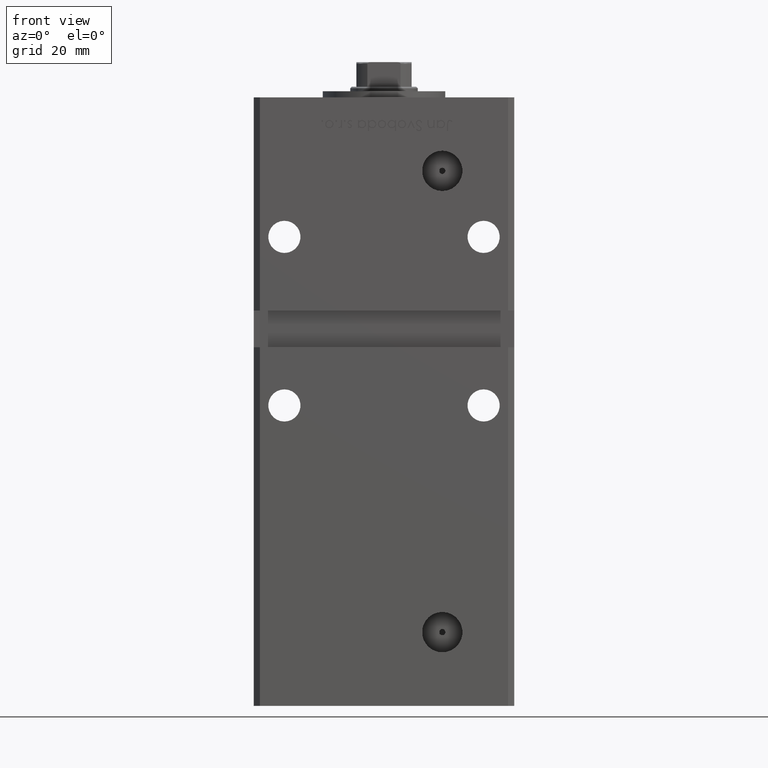
[diagram: clean part render]
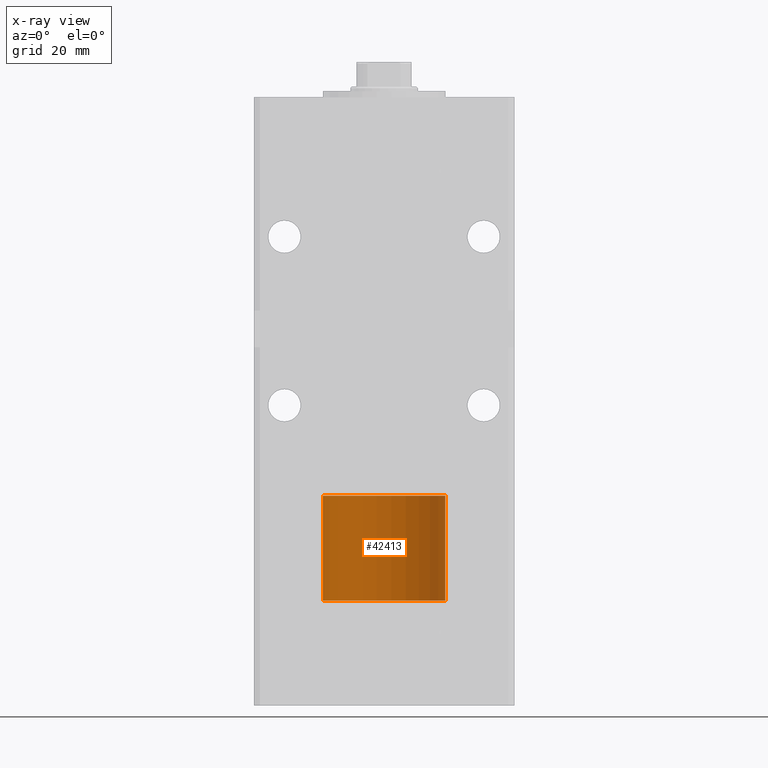
[diagram: x-ray — body ghosted, one internal face saturated and labeled with its STEP entity id]
A machine part, front view, then the same camera in x-ray: the body is ghosted and one INTERNAL B-rep face — a face not visible from any outside direction — is saturated and labeled: STEP entity #42413.
In plain terms, the highlighted cylindrical surface (partial cylindrical patch) has radius 20 mm, axis along (-0, -0, -1).
Its self-contained STEP definition (entity closure, byte-faithful):
#2599 = EDGE_CURVE ( 'NONE', #25982, #37871, #14663, .T. ) ;
#3030 = CARTESIAN_POINT ( 'NONE',  ( 20.00000000000000000, 2.449293598294706513E-15, 0.000000000000000000 ) ) ;
#4152 = DIRECTION ( 'NONE',  ( -0.000000000000000000, -0.000000000000000000, -1.000000000000000000 ) ) ;
#5156 = FACE_OUTER_BOUND ( 'NONE', #44674, .T. ) ;
#11024 = CARTESIAN_POINT ( 'NONE',  ( -20.00000000000000000, 0.000000000000000000, 34.25000000000000000 ) ) ;
#12719 = EDGE_CURVE ( 'NONE', #45339, #51506, #42417, .T. ) ;
#14663 = CIRCLE ( 'NONE', #36994, 20.00000000000000000 ) ;
#16237 = DIRECTION ( 'NONE',  ( 1.000000000000000000, 0.000000000000000000, 0.000000000000000000 ) ) ;
#16749 = DIRECTION ( 'NONE',  ( 1.000000000000000000, 0.000000000000000000, 0.000000000000000000 ) ) ;
#17004 = ORIENTED_EDGE ( 'NONE', *, *, #42040, .F. ) ;
#17007 = ORIENTED_EDGE ( 'NONE', *, *, #42947, .T. ) ;
#17879 = ORIENTED_EDGE ( 'NONE', *, *, #2599, .T. ) ;
#20470 = LINE ( 'NONE', #36348, #33733 ) ;
#20766 = CARTESIAN_POINT ( 'NONE',  ( 0.000000000000000000, 0.000000000000000000, 34.25000000000000000 ) ) ;
#21287 = CARTESIAN_POINT ( 'NONE',  ( 0.000000000000000000, 0.000000000000000000, 34.25000000000000000 ) ) ;
#23757 = DIRECTION ( 'NONE',  ( 0.000000000000000000, 0.000000000000000000, 1.000000000000000000 ) ) ;
#24544 = DIRECTION ( 'NONE',  ( 0.000000000000000000, 0.000000000000000000, 1.000000000000000000 ) ) ;
#24592 = LINE ( 'NONE', #32400, #37145 ) ;
#25982 = VERTEX_POINT ( 'NONE', #3030 ) ;
#27159 = CARTESIAN_POINT ( 'NONE',  ( 20.00000000000000000, 2.449293598294706513E-15, 34.25000000000000000 ) ) ;
#32400 = CARTESIAN_POINT ( 'NONE',  ( -20.00000000000000000, 0.000000000000000000, 34.25000000000000000 ) ) ;
#33733 = VECTOR ( 'NONE', #51991, 1000.000000000000000 ) ;
#33935 = DIRECTION ( 'NONE',  ( -1.000000000000000000, 0.000000000000000000, 0.000000000000000000 ) ) ;
#36348 = CARTESIAN_POINT ( 'NONE',  ( 20.00000000000000000, 2.449293598294706513E-15, 34.25000000000000000 ) ) ;
#36674 = CARTESIAN_POINT ( 'NONE',  ( 0.000000000000000000, 0.000000000000000000, 0.000000000000000000 ) ) ;
#36994 = AXIS2_PLACEMENT_3D ( 'NONE', #36674, #23757, #16237 ) ;
#37145 = VECTOR ( 'NONE', #4152, 1000.000000000000000 ) ;
#37871 = VERTEX_POINT ( 'NONE', #43509 ) ;
#37965 = CYLINDRICAL_SURFACE ( 'NONE', #51796, 20.00000000000000000 ) ;
#42040 = EDGE_CURVE ( 'NONE', #51506, #37871, #24592, .T. ) ;
#42264 = DIRECTION ( 'NONE',  ( -0.000000000000000000, -0.000000000000000000, -1.000000000000000000 ) ) ;
#42413 = ADVANCED_FACE ( 'NONE', ( #5156 ), #37965, .T. ) ;
#42417 = CIRCLE ( 'NONE', #44136, 20.00000000000000000 ) ;
#42947 = EDGE_CURVE ( 'NONE', #45339, #25982, #20470, .T. ) ;
#43509 = CARTESIAN_POINT ( 'NONE',  ( -20.00000000000000000, 0.000000000000000000, 0.000000000000000000 ) ) ;
#44136 = AXIS2_PLACEMENT_3D ( 'NONE', #20766, #24544, #16749 ) ;
#44674 = EDGE_LOOP ( 'NONE', ( #46891, #17007, #17879, #17004 ) ) ;
#45339 = VERTEX_POINT ( 'NONE', #27159 ) ;
#46891 = ORIENTED_EDGE ( 'NONE', *, *, #12719, .F. ) ;
#51506 = VERTEX_POINT ( 'NONE', #11024 ) ;
#51796 = AXIS2_PLACEMENT_3D ( 'NONE', #21287, #42264, #33935 ) ;
#51991 = DIRECTION ( 'NONE',  ( -0.000000000000000000, -0.000000000000000000, -1.000000000000000000 ) ) ;